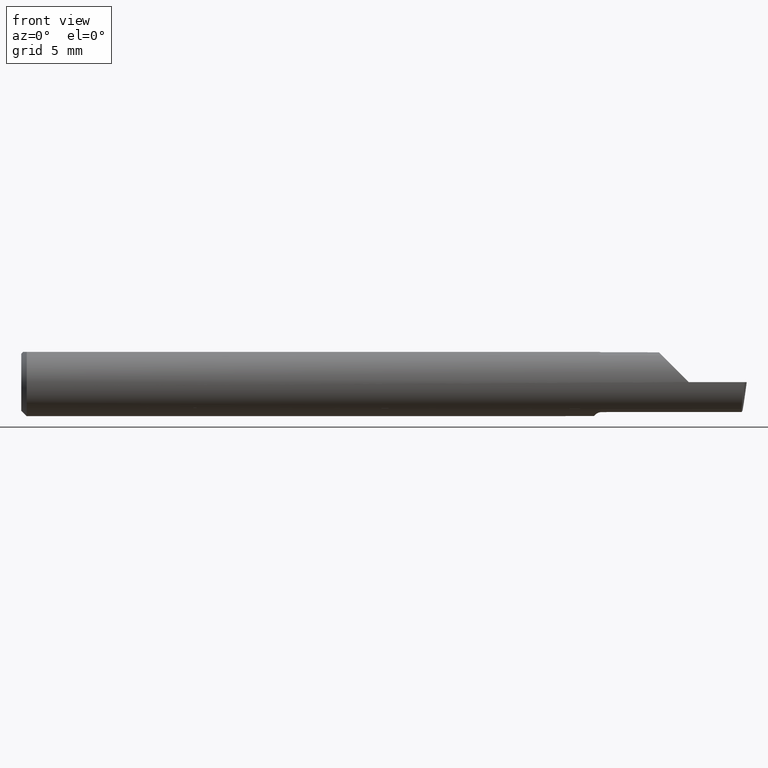
[diagram: clean part render]
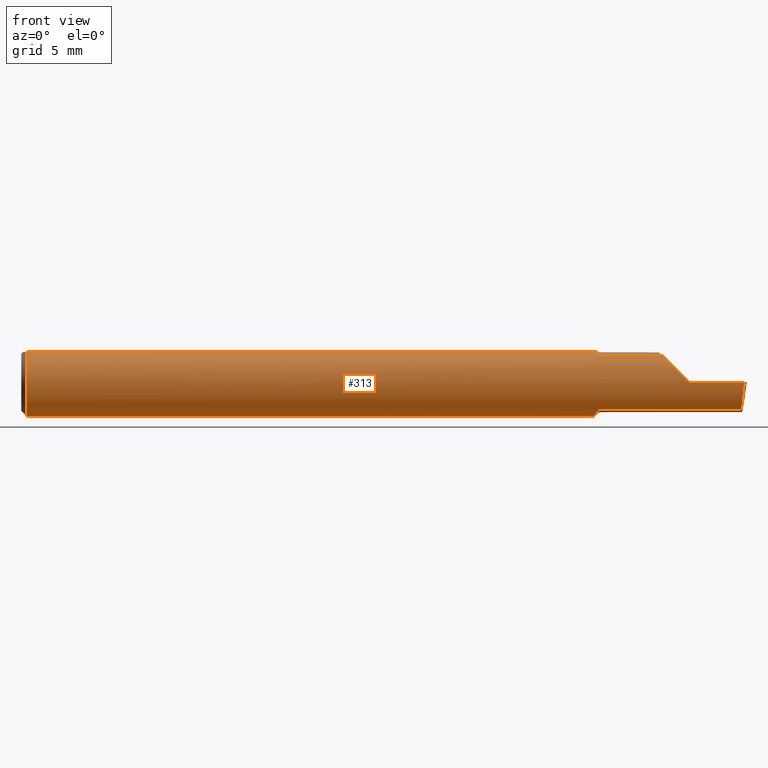
[diagram: same view with one face highlighted and labeled with its STEP entity id]
A machine part, front view. The second image highlights one B-rep face of the part: STEP entity #313.
In plain terms, the highlighted cylindrical surface (edge-blend (fillet) strip) has radius 2.3774 mm, axis along (-1, -0, -0).
Its self-contained STEP definition (entity closure, byte-faithful):
#2 = CARTESIAN_POINT ( 'NONE',  ( 1.784610455782699834, -0.08049145269555538218, 0.05598954421729967351 ) ) ;
#6 = CARTESIAN_POINT ( 'NONE',  ( 1.810798836011073609, -0.09341088610867002984, 0.02980116398892594665 ) ) ;
#10 = ORIENTED_EDGE ( 'NONE', *, *, #452, .T. ) ;
#19 = AXIS2_PLACEMENT_3D ( 'NONE', #184, #560, #373 ) ;
#23 = EDGE_CURVE ( 'NONE', #253, #431, #301, .T. ) ;
#24 = ORIENTED_EDGE ( 'NONE', *, *, #424, .F. ) ;
#28 = CARTESIAN_POINT ( 'NONE',  ( 0.01500000000000024925, 0.000000000000000000, 0.000000000000000000 ) ) ;
#39 = CARTESIAN_POINT ( 'NONE',  ( 1.576144576143710285, 0.01709494092009376451, -0.09263046394120928728 ) ) ;
#44 = CARTESIAN_POINT ( 'NONE',  ( 1.840000000000000080, -0.09359999999999998876, -1.868634782302818344E-17 ) ) ;
#49 = CYLINDRICAL_SURFACE ( 'NONE', #596, 0.09360000000000001652 ) ;
#54 = DIRECTION ( 'NONE',  ( 1.000000000000000000, 0.000000000000000000, 0.000000000000000000 ) ) ;
#56 = CARTESIAN_POINT ( 'NONE',  ( 1.575142176526518778, 0.04209513036078768589, 0.08360000000000000764 ) ) ;
#60 = CARTESIAN_POINT ( 'NONE',  ( 1.587244037189778689, -0.04400341751547286878, -0.08275374857139974893 ) ) ;
#64 = CARTESIAN_POINT ( 'NONE',  ( 1.724999999999999867, -0.05743333333333348889, 0.07390786306085575519 ) ) ;
#66 = VERTEX_POINT ( 'NONE', #306 ) ;
#75 = EDGE_CURVE ( 'NONE', #555, #66, #124, .T. ) ;
#79 = CARTESIAN_POINT ( 'NONE',  ( 1.574999999999999956, 0.05554285714285678299, -0.07533890774631794851 ) ) ;
#87 = VERTEX_POINT ( 'NONE', #538 ) ;
#89 = CARTESIAN_POINT ( 'NONE',  ( 1.575168354287724393, 0.03731812126117082379, -0.08648697983258356314 ) ) ;
#97 = FACE_OUTER_BOUND ( 'NONE', #281, .T. ) ;
#102 =( BOUNDED_CURVE ( )  B_SPLINE_CURVE ( 3, ( #288, #6, #2, #243 ),
 .UNSPECIFIED., .F., .T. ) 
 B_SPLINE_CURVE_WITH_KNOTS ( ( 4, 4 ),
 ( 4.718799280696806875, 5.622568524807391555 ),
 .UNSPECIFIED. ) 
 CURVE ( )  GEOMETRIC_REPRESENTATION_ITEM ( )  RATIONAL_B_SPLINE_CURVE ( ( 1.000000000000000000, 0.9330838387302625714, 0.9330838387302625714, 1.000000000000000000 ) ) 
 REPRESENTATION_ITEM ( '' )  );
#110 = CARTESIAN_POINT ( 'NONE',  ( 0.01499999999997154825, -0.04209513035984145668, 0.08360000000000000764 ) ) ;
#111 = CARTESIAN_POINT ( 'NONE',  ( 1.599999999999999867, -0.05743333333333335705, -0.07390786306085585233 ) ) ;
#120 =( BOUNDED_CURVE ( )  B_SPLINE_CURVE ( 3, ( #171, #362, #274, #127 ),
 .UNSPECIFIED., .F., .F. ) 
 B_SPLINE_CURVE_WITH_KNOTS ( ( 4, 4 ),
 ( 0.3856751006538576276, 1.295854645076564893 ),
 .UNSPECIFIED. ) 
 CURVE ( )  GEOMETRIC_REPRESENTATION_ITEM ( )  RATIONAL_B_SPLINE_CURVE ( ( 1.000000000000000000, 0.9321477153702213414, 0.9321477153702213414, 1.000000000000000000 ) ) 
 REPRESENTATION_ITEM ( '' )  );
#122 = EDGE_CURVE ( 'NONE', #225, #555, #398, .T. ) ;
#123 = CARTESIAN_POINT ( 'NONE',  ( 1.597347190739961675, -0.05697548597935362530, -0.07426583441000250696 ) ) ;
#124 = CIRCLE ( 'NONE', #534, 0.09360000000000001652 ) ;
#127 = CARTESIAN_POINT ( 'NONE',  ( 1.993644362309209273, -0.09359999999999998876, -1.868634782302818344E-17 ) ) ;
#131 = CARTESIAN_POINT ( 'NONE',  ( 1.575040027559960309, 0.04685176294831536192, 0.08120489152038623537 ) ) ;
#132 = ORIENTED_EDGE ( 'NONE', *, *, #122, .F. ) ;
#133 = CARTESIAN_POINT ( 'NONE',  ( 0.01500000000000024925, 0.04209513035969833505, 0.08360000000000004927 ) ) ;
#139 = CARTESIAN_POINT ( 'NONE',  ( 1.724999999999999867, -0.05743333333333348889, -0.07390786306085575519 ) ) ;
#149 = DIRECTION ( 'NONE',  ( -1.000000000000000000, -0.000000000000000000, -0.000000000000000000 ) ) ;
#150 = ORIENTED_EDGE ( 'NONE', *, *, #357, .T. ) ;
#152 = CARTESIAN_POINT ( 'NONE',  ( 1.993644362309209273, -0.09359999999999998876, -1.868634782302818344E-17 ) ) ;
#155 = CARTESIAN_POINT ( 'NONE',  ( 1.589459435960657752, -0.04855549187618748985, 0.08009376993471994943 ) ) ;
#162 = VECTOR ( 'NONE', #54, 39.37007874015748143 ) ;
#164 = EDGE_CURVE ( 'NONE', #371, #221, #503, .T. ) ;
#165 = LINE ( 'NONE', #346, #310 ) ;
#171 = CARTESIAN_POINT ( 'NONE',  ( 1.985817582123950320, -0.05743333333333348889, -0.07390786306085575519 ) ) ;
#172 = CARTESIAN_POINT ( 'NONE',  ( 1.575000000000000178, 0.04702664240545763319, -0.08161740198929257062 ) ) ;
#179 = ORIENTED_EDGE ( 'NONE', *, *, #23, .F. ) ;
#181 = VECTOR ( 'NONE', #259, 39.37007874015748143 ) ;
#184 = CARTESIAN_POINT ( 'NONE',  ( 1.840000000000000080, 0.000000000000000000, 0.000000000000000000 ) ) ;
#196 = VERTEX_POINT ( 'NONE', #133 ) ;
#204 = CARTESIAN_POINT ( 'NONE',  ( 1.599999999999999867, -0.05743333333333334317, 0.07390786306085586621 ) ) ;
#205 = CARTESIAN_POINT ( 'NONE',  ( 1.598629319350718392, -0.05743333333333337787, -0.07390786306085582458 ) ) ;
#216 = CARTESIAN_POINT ( 'NONE',  ( 1.593500194611085830, -0.05420457752416603381, 0.07632036423959691340 ) ) ;
#218 = ORIENTED_EDGE ( 'NONE', *, *, #565, .F. ) ;
#221 = VERTEX_POINT ( 'NONE', #367 ) ;
#223 = CARTESIAN_POINT ( 'NONE',  ( 1.574999999999999956, 0.05554285714285678299, 0.07533890774631794851 ) ) ;
#225 = VERTEX_POINT ( 'NONE', #512 ) ;
#233 = EDGE_CURVE ( 'NONE', #87, #196, #380, .T. ) ;
#238 = DIRECTION ( 'NONE',  ( 1.000000000000000000, -0.000000000000000000, -0.000000000000000000 ) ) ;
#243 = CARTESIAN_POINT ( 'NONE',  ( 1.766692136939143953, -0.05743333333333389135, 0.07390786306085547763 ) ) ;
#244 = VERTEX_POINT ( 'NONE', #465 ) ;
#249 = DIRECTION ( 'NONE',  ( 0.000000000000000000, 0.000000000000000000, 1.000000000000000000 ) ) ;
#253 = VERTEX_POINT ( 'NONE', #324 ) ;
#259 = DIRECTION ( 'NONE',  ( 1.000000000000000000, -4.268512490100411279E-18, 0.000000000000000000 ) ) ;
#267 = ORIENTED_EDGE ( 'NONE', *, *, #233, .T. ) ;
#268 = DIRECTION ( 'NONE',  ( 1.000000000000000000, -0.000000000000000000, -0.000000000000000000 ) ) ;
#269 = CARTESIAN_POINT ( 'NONE',  ( 1.591816709666234786, -0.05223004665611983427, -0.07770207897814300491 ) ) ;
#273 = B_SPLINE_CURVE_WITH_KNOTS ( 'NONE', 3,
 ( #443, #593, #155, #499, #216, #299, #441, #204 ),
 .UNSPECIFIED., .F., .F.,
 ( 4, 2, 2, 4 ),
 ( 4.683264684582365770E-07, 0.0002986912473784077604, 0.0004478027078333824220, 0.0005969141682883572463 ),
 .UNSPECIFIED. ) ;
#274 = CARTESIAN_POINT ( 'NONE',  ( 1.990029385046013344, -0.09360000000000001652, -0.02942396326758928149 ) ) ;
#276 = VECTOR ( 'NONE', #292, 39.37007874015748143 ) ;
#279 = EDGE_CURVE ( 'NONE', #66, #244, #562, .T. ) ;
#280 = EDGE_CURVE ( 'NONE', #457, #495, #509, .T. ) ;
#281 = EDGE_LOOP ( 'NONE', ( #24, #338, #218, #384, #150, #179, #462, #487, #10, #267, #355, #368, #454, #132 ) ) ;
#282 = CARTESIAN_POINT ( 'NONE',  ( 1.576960904884547432, 0.006343059769487768493, -0.09397454098218586960 ) ) ;
#285 = AXIS2_PLACEMENT_3D ( 'NONE', #28, #238, #422 ) ;
#288 = CARTESIAN_POINT ( 'NONE',  ( 1.840000000000000080, -0.09359807690332104524, 0.0005999999999995612792 ) ) ;
#290 = LINE ( 'NONE', #336, #162 ) ;
#292 = DIRECTION ( 'NONE',  ( -1.000000000000000000, -0.000000000000000000, -0.000000000000000000 ) ) ;
#299 = CARTESIAN_POINT ( 'NONE',  ( 1.596236548575434178, -0.05647099370358304310, 0.07465896525112006299 ) ) ;
#301 = LINE ( 'NONE', #64, #181 ) ;
#306 = CARTESIAN_POINT ( 'NONE',  ( 1.574999999999999956, 0.05554285714285678299, 0.07533890774631794851 ) ) ;
#309 = CARTESIAN_POINT ( 'NONE',  ( 1.595169538597540848, -0.05567765305827140909, -0.07524373138753948087 ) ) ;
#310 = VECTOR ( 'NONE', #268, 39.37007874015748143 ) ;
#313 = ADVANCED_FACE ( 'NONE', ( #97 ), #49, .T. ) ;
#324 = CARTESIAN_POINT ( 'NONE',  ( 1.599999999999999867, -0.05743333333333334317, 0.07390786306085586621 ) ) ;
#325 = DIRECTION ( 'NONE',  ( -1.000000000000000000, 4.268512490100411279E-18, -0.000000000000000000 ) ) ;
#328 = CIRCLE ( 'NONE', #461, 0.09360000000000001652 ) ;
#336 = CARTESIAN_POINT ( 'NONE',  ( 2.000000000000000000, 0.04209513035969836975, 0.08360000000000000764 ) ) ;
#338 = ORIENTED_EDGE ( 'NONE', *, *, #588, .T. ) ;
#344 = CARTESIAN_POINT ( 'NONE',  ( 1.574999999999999956, 0.05554285714285678299, -0.07533890774631794851 ) ) ;
#345 = CARTESIAN_POINT ( 'NONE',  ( 1.574999999999999956, 0.000000000000000000, 0.000000000000000000 ) ) ;
#346 = CARTESIAN_POINT ( 'NONE',  ( 1.840000000000000080, -0.09359999999999998876, -1.868634782302818344E-17 ) ) ;
#353 = DIRECTION ( 'NONE',  ( 1.000000000000000000, -0.000000000000000000, -0.000000000000000000 ) ) ;
#355 = ORIENTED_EDGE ( 'NONE', *, *, #385, .T. ) ;
#357 = EDGE_CURVE ( 'NONE', #221, #431, #102, .T. ) ;
#362 = CARTESIAN_POINT ( 'NONE',  ( 1.987230551035694237, -0.08066690435778477164, -0.05585320183932564186 ) ) ;
#367 = CARTESIAN_POINT ( 'NONE',  ( 1.840000000000000080, -0.09359807690332104524, 0.0005999999999995612792 ) ) ;
#368 = ORIENTED_EDGE ( 'NONE', *, *, #279, .F. ) ;
#371 = VERTEX_POINT ( 'NONE', #44 ) ;
#373 = DIRECTION ( 'NONE',  ( 0.000000000000000000, 0.000000000000000000, 1.000000000000000000 ) ) ;
#376 = LINE ( 'NONE', #139, #622 ) ;
#380 = CIRCLE ( 'NONE', #285, 0.09360000000000001652 ) ;
#384 = ORIENTED_EDGE ( 'NONE', *, *, #164, .T. ) ;
#385 = EDGE_CURVE ( 'NONE', #196, #244, #290, .T. ) ;
#394 = CARTESIAN_POINT ( 'NONE',  ( 0.01500000000000024925, 0.000000000000000000, 0.000000000000000000 ) ) ;
#397 = CARTESIAN_POINT ( 'NONE',  ( 1.585601563140986769, -0.03939123913276517536, -0.08506160841583948473 ) ) ;
#398 = B_SPLINE_CURVE_WITH_KNOTS ( 'NONE', 3,
 ( #111, #205, #123, #309, #506, #269, #492, #60, #397, #442, #592, #282, #39, #89, #172, #79 ),
 .UNSPECIFIED., .F., .F.,
 ( 4, 2, 2, 2, 2, 2, 2, 4 ),
 ( 1.968462504418613493E-07, 0.0001030101262769547856, 0.0002058234063034677290, 0.0004114499663564933989, 0.0008227030864625447387, 0.001645209326674647527, 0.002467715566886749881, 0.003290221807098853320 ),
 .UNSPECIFIED. ) ;
#405 = CARTESIAN_POINT ( 'NONE',  ( 1.985817582123950320, -0.05743333333333348889, -0.07390786306085575519 ) ) ;
#407 = VERTEX_POINT ( 'NONE', #152 ) ;
#411 = CARTESIAN_POINT ( 'NONE',  ( 1.574999999999999956, 0.05132964582701189660, 0.07844505570132430383 ) ) ;
#422 = DIRECTION ( 'NONE',  ( 0.000000000000000000, 0.000000000000000000, -1.000000000000000000 ) ) ;
#424 = EDGE_CURVE ( 'NONE', #448, #225, #376, .T. ) ;
#431 = VERTEX_POINT ( 'NONE', #549 ) ;
#441 = CARTESIAN_POINT ( 'NONE',  ( 1.598002207329247026, -0.05743333333450055533, 0.07390786305994907768 ) ) ;
#442 = CARTESIAN_POINT ( 'NONE',  ( 1.581424934709118713, -0.02512912529236548120, -0.09074268482284296444 ) ) ;
#443 = CARTESIAN_POINT ( 'NONE',  ( 1.586717443774290803, -0.04209513035984616125, 0.08360000000000000764 ) ) ;
#446 = DIRECTION ( 'NONE',  ( 0.000000000000000000, 1.000000000000000000, 0.000000000000000000 ) ) ;
#447 = EDGE_CURVE ( 'NONE', #457, #253, #273, .T. ) ;
#448 = VERTEX_POINT ( 'NONE', #405 ) ;
#452 = EDGE_CURVE ( 'NONE', #495, #87, #328, .T. ) ;
#454 = ORIENTED_EDGE ( 'NONE', *, *, #75, .F. ) ;
#457 = VERTEX_POINT ( 'NONE', #591 ) ;
#461 = AXIS2_PLACEMENT_3D ( 'NONE', #394, #353, #537 ) ;
#462 = ORIENTED_EDGE ( 'NONE', *, *, #447, .F. ) ;
#465 = CARTESIAN_POINT ( 'NONE',  ( 1.575142176526518778, 0.04209513036078768589, 0.08360000000000000764 ) ) ;
#487 = ORIENTED_EDGE ( 'NONE', *, *, #280, .T. ) ;
#492 = CARTESIAN_POINT ( 'NONE',  ( 1.590569916151895136, -0.05024158040198308667, -0.07901028105649250677 ) ) ;
#495 = VERTEX_POINT ( 'NONE', #110 ) ;
#498 = DIRECTION ( 'NONE',  ( 1.000000000000000000, -4.268512490100411279E-18, 0.000000000000000000 ) ) ;
#499 = CARTESIAN_POINT ( 'NONE',  ( 1.592392031394424645, -0.05284074569801946314, 0.07727701817164549236 ) ) ;
#503 = CIRCLE ( 'NONE', #19, 0.09360000000000001652 ) ;
#506 = CARTESIAN_POINT ( 'NONE',  ( 1.594265872229059910, -0.05486689380272648936, -0.07584023785067438295 ) ) ;
#509 = LINE ( 'NONE', #528, #276 ) ;
#512 = CARTESIAN_POINT ( 'NONE',  ( 1.599999999999999867, -0.05743333333333335705, -0.07390786306085585233 ) ) ;
#522 = CARTESIAN_POINT ( 'NONE',  ( 2.000000000000000000, 0.000000000000000000, 0.000000000000000000 ) ) ;
#528 = CARTESIAN_POINT ( 'NONE',  ( 2.000000000000000000, -0.04209513035969836975, 0.08360000000000000764 ) ) ;
#534 = AXIS2_PLACEMENT_3D ( 'NONE', #345, #498, #446 ) ;
#537 = DIRECTION ( 'NONE',  ( 0.000000000000000000, 0.000000000000000000, -1.000000000000000000 ) ) ;
#538 = CARTESIAN_POINT ( 'NONE',  ( 0.01500000000000024925, 0.000000000000000000, -0.09360000000000001652 ) ) ;
#549 = CARTESIAN_POINT ( 'NONE',  ( 1.766692136939143953, -0.05743333333333389135, 0.07390786306085547763 ) ) ;
#555 = VERTEX_POINT ( 'NONE', #344 ) ;
#560 = DIRECTION ( 'NONE',  ( -1.000000000000000000, -0.000000000000000000, -0.000000000000000000 ) ) ;
#562 = B_SPLINE_CURVE_WITH_KNOTS ( 'NONE', 3,
 ( #223, #411, #131, #56 ),
 .UNSPECIFIED., .F., .F.,
 ( 4, 4 ),
 ( 0.001281379682259358842, 0.001681479309652221879 ),
 .UNSPECIFIED. ) ;
#565 = EDGE_CURVE ( 'NONE', #371, #407, #165, .T. ) ;
#588 = EDGE_CURVE ( 'NONE', #448, #407, #120, .T. ) ;
#591 = CARTESIAN_POINT ( 'NONE',  ( 1.586717443774290803, -0.04209513035984616125, 0.08360000000000000764 ) ) ;
#592 = CARTESIAN_POINT ( 'NONE',  ( 1.579608987010781229, -0.01465891424108890263, -0.09304066311739307704 ) ) ;
#593 = CARTESIAN_POINT ( 'NONE',  ( 1.588006724623164834, -0.04541486399302747945, 0.08192841363590096238 ) ) ;
#596 = AXIS2_PLACEMENT_3D ( 'NONE', #522, #149, #249 ) ;
#622 = VECTOR ( 'NONE', #325, 39.37007874015748143 ) ;